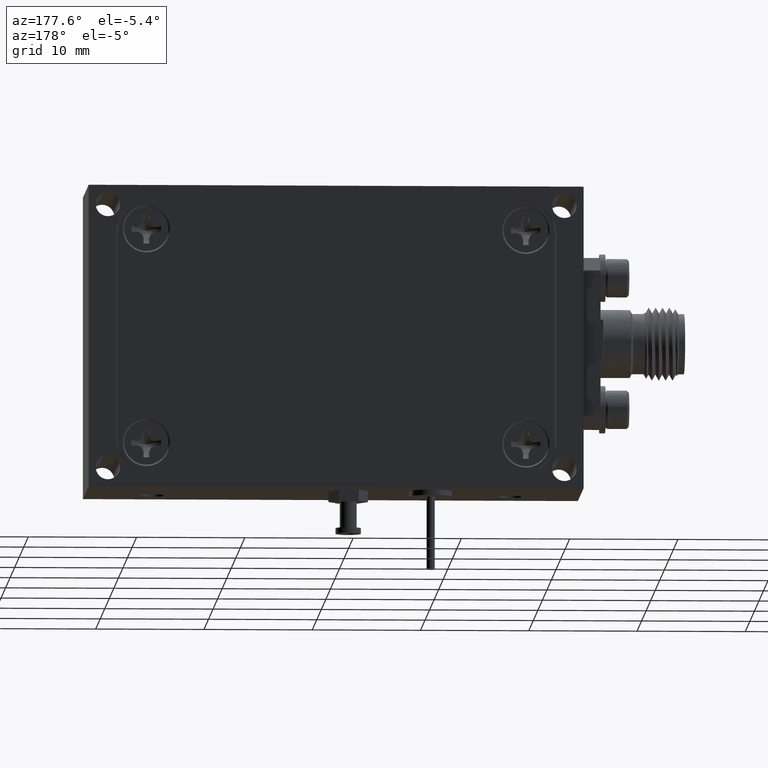
[diagram: clean part render]
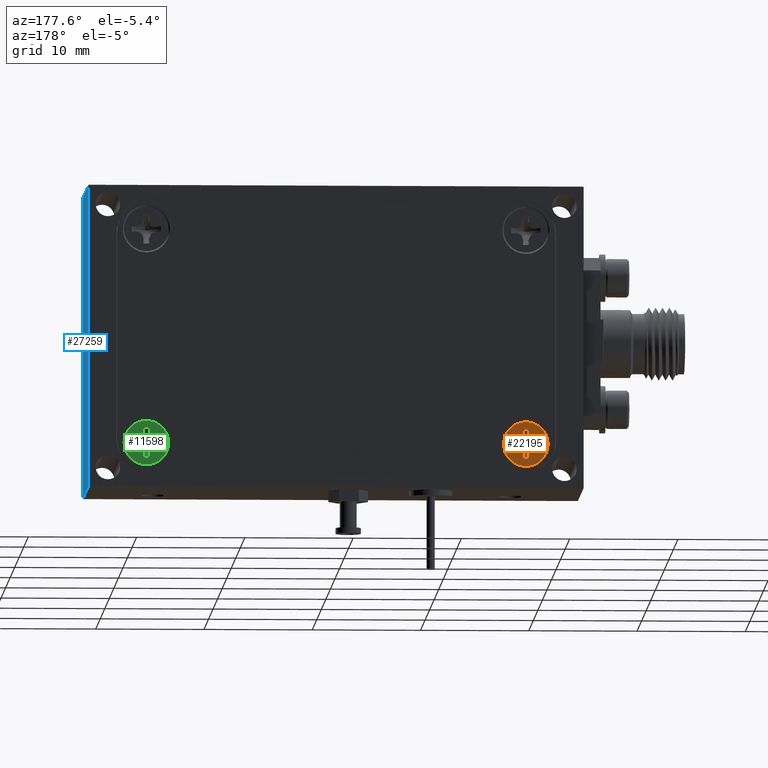
[diagram: same view with three faces highlighted in distinct colors, each labeled with its STEP entity id]
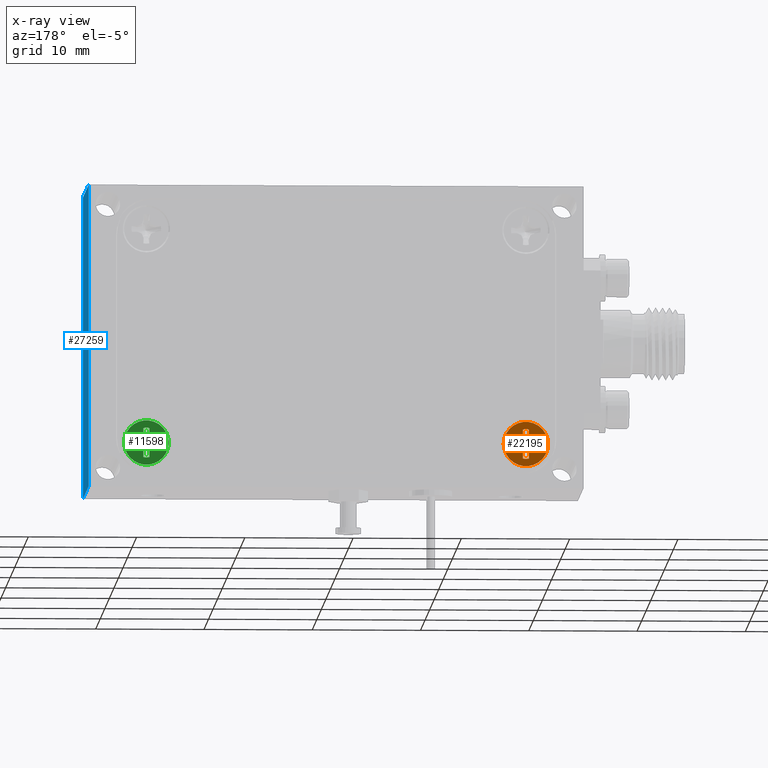
[diagram: x-ray of the same camera — body ghosted, the three highlighted faces saturated]
A machine part, auxiliary view with three faces highlighted in distinct colors.
The next image is the same camera in x-ray (body ghosted, the three faces saturated) — at least one of them is partly hidden behind the body in this view.
Their STEP definitions:

[orange] entity #22195 — the highlighted planar face has unit normal (-0, -1, 0).
#238 = EDGE_CURVE ( 'NONE', #13866, #3992, #24157, .T. ) ;
#598 = EDGE_CURVE ( 'NONE', #15924, #14103, #23766, .T. ) ;
#1007 = CARTESIAN_POINT ( 'NONE',  ( -0.7069667171187216100, 0.4995000000000008900, -0.3730332828812789600 ) ) ;
#1145 = ORIENTED_EDGE ( 'NONE', *, *, #6030, .F. ) ;
#1185 = VECTOR ( 'NONE', #7824, 39.37007874015748100 ) ;
#1436 = VECTOR ( 'NONE', #10237, 39.37007874015748100 ) ;
#1502 = VECTOR ( 'NONE', #2216, 39.37007874015748100 ) ;
#1507 = DIRECTION ( 'NONE',  ( 1.000000000000000000, 0.0000000000000000000, -1.264744441511232400E-015 ) ) ;
#1617 = CARTESIAN_POINT ( 'NONE',  ( -0.6900000000000000600, 0.4994999999999998300, -0.3900000000000002900 ) ) ;
#1690 = CARTESIAN_POINT ( 'NONE',  ( -0.7007999999999997600, 0.4995000000000008900, -0.3581455107779414300 ) ) ;
#1707 = DIRECTION ( 'NONE',  ( 0.9238795325112825200, 2.901436966726516100E-017, -0.3826834323651000000 ) ) ;
#1766 = VERTEX_POINT ( 'NONE', #26920 ) ;
#2216 = DIRECTION ( 'NONE',  ( -8.382183835919917700E-015, -2.199460312569104900E-017, -1.000000000000000000 ) ) ;
#2220 = DIRECTION ( 'NONE',  ( -4.051539033792351500E-017, -1.000000000000000000, -2.199460312569029700E-017 ) ) ;
#2538 = DIRECTION ( 'NONE',  ( -0.9238795325112870700, -4.584831010256090100E-017, -0.3826834323650889500 ) ) ;
#2598 = VECTOR ( 'NONE', #22545, 39.37007874015748100 ) ;
#2823 = DIRECTION ( 'NONE',  ( 1.000000000000000000, 0.0000000000000000000, -1.264744441511232400E-015 ) ) ;
#2915 = CARTESIAN_POINT ( 'NONE',  ( -0.6900000000000000600, 0.4994999999999998300, -0.3900000000000002900 ) ) ;
#3199 = CARTESIAN_POINT ( 'NONE',  ( -0.6581455107779423700, 0.4995000000000001100, -0.3792000000000003100 ) ) ;
#3255 = EDGE_CURVE ( 'NONE', #27132, #23635, #16829, .T. ) ;
#3298 = VECTOR ( 'NONE', #20271, 39.37007874015748100 ) ;
#3348 = CARTESIAN_POINT ( 'NONE',  ( -0.6581455107779423700, 0.4995000000000001100, -0.3792000000000003100 ) ) ;
#3638 = EDGE_CURVE ( 'NONE', #9583, #11271, #25441, .T. ) ;
#3767 = VECTOR ( 'NONE', #19822, 39.37007874015748900 ) ;
#3823 = DIRECTION ( 'NONE',  ( 9.992007221626401000E-016, -2.199460312569048200E-017, -1.000000000000000000 ) ) ;
#3835 = ORIENTED_EDGE ( 'NONE', *, *, #21516, .F. ) ;
#3956 = LINE ( 'NONE', #7256, #12487 ) ;
#3968 = DIRECTION ( 'NONE',  ( 2.386979502944084600E-015, 2.199460312569126800E-017, 1.000000000000000000 ) ) ;
#3992 = VERTEX_POINT ( 'NONE', #1690 ) ;
#4122 = DIRECTION ( 'NONE',  ( 0.9238795325112896300, 4.584831010256079600E-017, 0.3826834323650825700 ) ) ;
#4187 = ORIENTED_EDGE ( 'NONE', *, *, #6208, .F. ) ;
#4433 = DIRECTION ( 'NONE',  ( -1.000000000000000000, 0.0000000000000000000, 1.686325922014976400E-015 ) ) ;
#4451 = DIRECTION ( 'NONE',  ( -2.529488883022464800E-015, 0.0000000000000000000, -1.000000000000000000 ) ) ;
#4460 = ORIENTED_EDGE ( 'NONE', *, *, #13441, .F. ) ;
#4679 = ORIENTED_EDGE ( 'NONE', *, *, #15596, .F. ) ;
#4689 = VERTEX_POINT ( 'NONE', #22533 ) ;
#5230 = DIRECTION ( 'NONE',  ( -1.000000000000000000, 0.0000000000000000000, 8.853211090578625500E-015 ) ) ;
#5324 = CARTESIAN_POINT ( 'NONE',  ( -0.6791999999999996900, 0.4994999999999998300, -0.3581455107779418800 ) ) ;
#5347 = LINE ( 'NONE', #5324, #12465 ) ;
#5361 = CARTESIAN_POINT ( 'NONE',  ( -0.6900000000000000600, 0.4994999999999998300, -0.3900000000000002900 ) ) ;
#5818 = CARTESIAN_POINT ( 'NONE',  ( -0.7429089784441177400, 0.4995000000000020000, -0.3792000000000000400 ) ) ;
#5839 = CARTESIAN_POINT ( 'NONE',  ( -0.6730332828812783900, 0.4995000000000001100, -0.3730332828812788500 ) ) ;
#6009 = VECTOR ( 'NONE', #15640, 39.37007874015748100 ) ;
#6030 = EDGE_CURVE ( 'NONE', #14103, #10661, #3956, .T. ) ;
#6069 = CARTESIAN_POINT ( 'NONE',  ( -0.7218544892220587500, 0.4995000000000008900, -0.4008000000000002100 ) ) ;
#6208 = EDGE_CURVE ( 'NONE', #3992, #27983, #19581, .T. ) ;
#6682 = LINE ( 'NONE', #5839, #25946 ) ;
#6734 = AXIS2_PLACEMENT_3D ( 'NONE', #5361, #9832, #10022 ) ;
#7050 = EDGE_LOOP ( 'NONE', ( #21828, #16923 ) ) ;
#7113 = CARTESIAN_POINT ( 'NONE',  ( -0.6792000000000002500, 0.4995000000000008900, -0.3370910215558829400 ) ) ;
#7256 = CARTESIAN_POINT ( 'NONE',  ( -0.7429089784441177400, 0.4995000000000020000, -0.3792000000000000400 ) ) ;
#7351 = PLANE ( 'NONE',  #15843 ) ;
#7824 = DIRECTION ( 'NONE',  ( 1.000000000000000000, 4.051539033792239300E-017, -1.215694211964545500E-014 ) ) ;
#7863 = CARTESIAN_POINT ( 'NONE',  ( -0.6370910215558839300, 0.4995000000000001100, -0.3792000000000006500 ) ) ;
#7866 = EDGE_CURVE ( 'NONE', #4689, #9573, #20213, .T. ) ;
#7910 = VECTOR ( 'NONE', #4122, 39.37007874015748900 ) ;
#8198 = ORIENTED_EDGE ( 'NONE', *, *, #10715, .F. ) ;
#8561 = VERTEX_POINT ( 'NONE', #18640 ) ;
#8621 = VECTOR ( 'NONE', #2538, 39.37007874015748900 ) ;
#9299 = CIRCLE ( 'NONE', #9772, 0.05400000000000002700 ) ;
#9491 = VERTEX_POINT ( 'NONE', #22335 ) ;
#9542 = VECTOR ( 'NONE', #3823, 39.37007874015748100 ) ;
#9573 = VERTEX_POINT ( 'NONE', #23825 ) ;
#9583 = VERTEX_POINT ( 'NONE', #14456 ) ;
#9772 = AXIS2_PLACEMENT_3D ( 'NONE', #1617, #15155, #1507 ) ;
#9832 = DIRECTION ( 'NONE',  ( 4.051539033792351500E-017, 1.000000000000000000, 2.199460312569029700E-017 ) ) ;
#9834 = VERTEX_POINT ( 'NONE', #27284 ) ;
#10022 = DIRECTION ( 'NONE',  ( 1.000000000000000000, 0.0000000000000000000, -1.264744441511232400E-015 ) ) ;
#10067 = CIRCLE ( 'NONE', #25820, 0.08100000000000004400 ) ;
#10105 = AXIS2_PLACEMENT_3D ( 'NONE', #11269, #2220, #18104 ) ;
#10237 = DIRECTION ( 'NONE',  ( 6.161737786669612500E-015, 2.199460312569107700E-017, 1.000000000000000000 ) ) ;
#10248 = CARTESIAN_POINT ( 'NONE',  ( -0.6730332828812783900, 0.4995000000000001100, -0.3730332828812788500 ) ) ;
#10661 = VERTEX_POINT ( 'NONE', #23125 ) ;
#10715 = EDGE_CURVE ( 'NONE', #8561, #20977, #26482, .T. ) ;
#11080 = EDGE_CURVE ( 'NONE', #9573, #4689, #10067, .T. ) ;
#11087 = CARTESIAN_POINT ( 'NONE',  ( -0.6581455107779423700, 0.4995000000000001100, -0.4007999999999993200 ) ) ;
#11181 = DIRECTION ( 'NONE',  ( 4.051539033792351500E-017, 1.000000000000000000, 2.199460312569029700E-017 ) ) ;
#11269 = CARTESIAN_POINT ( 'NONE',  ( -0.6900000000000000600, 0.4994999999999998300, -0.3900000000000002900 ) ) ;
#11271 = VERTEX_POINT ( 'NONE', #20804 ) ;
#11817 = DIRECTION ( 'NONE',  ( 1.000000000000000000, 4.051539033792308400E-017, -8.493206138382439600E-015 ) ) ;
#11865 = LINE ( 'NONE', #11087, #8621 ) ;
#12283 = CARTESIAN_POINT ( 'NONE',  ( -0.6900000000000000600, 0.4994999999999998300, -0.3900000000000002900 ) ) ;
#12359 = FACE_BOUND ( 'NONE', #25831, .T. ) ;
#12465 = VECTOR ( 'NONE', #14350, 39.37007874015748100 ) ;
#12487 = VECTOR ( 'NONE', #11817, 39.37007874015748100 ) ;
#13030 = EDGE_CURVE ( 'NONE', #10661, #13866, #20687, .T. ) ;
#13119 = ORIENTED_EDGE ( 'NONE', *, *, #13030, .F. ) ;
#13305 = CARTESIAN_POINT ( 'NONE',  ( -0.6360000000000000100, 0.4994999999999998300, -0.3899999999999991800 ) ) ;
#13424 = LINE ( 'NONE', #24403, #9542 ) ;
#13441 = EDGE_CURVE ( 'NONE', #14099, #9583, #29398, .T. ) ;
#13866 = VERTEX_POINT ( 'NONE', #1007 ) ;
#14070 = CARTESIAN_POINT ( 'NONE',  ( -0.6900000000000000600, 0.4994999999999998300, -0.3900000000000002900 ) ) ;
#14099 = VERTEX_POINT ( 'NONE', #17281 ) ;
#14103 = VERTEX_POINT ( 'NONE', #5818 ) ;
#14243 = LINE ( 'NONE', #15271, #29181 ) ;
#14277 = CARTESIAN_POINT ( 'NONE',  ( -0.6791999999999996900, 0.4994999999999998300, -0.3581455107779418800 ) ) ;
#14342 = LINE ( 'NONE', #26990, #3298 ) ;
#14350 = DIRECTION ( 'NONE',  ( 0.3826834323650816200, -4.815795015406163400E-018, -0.9238795325112901800 ) ) ;
#14364 = DIRECTION ( 'NONE',  ( -0.9238795325112850700, -2.901436966726467400E-017, 0.3826834323650937800 ) ) ;
#14456 = CARTESIAN_POINT ( 'NONE',  ( -0.7069667171187210600, 0.4994999999999998300, -0.4069667171187216800 ) ) ;
#14911 = VERTEX_POINT ( 'NONE', #13305 ) ;
#15155 = DIRECTION ( 'NONE',  ( 4.051539033792351500E-017, 1.000000000000000000, 2.199460312569029700E-017 ) ) ;
#15200 = CARTESIAN_POINT ( 'NONE',  ( -0.7429089784441166300, 0.4995000000000008900, -0.4007999999999998800 ) ) ;
#15249 = CARTESIAN_POINT ( 'NONE',  ( -0.7008000000000003100, 0.4995000000000001100, -0.4218544892220579300 ) ) ;
#15271 = CARTESIAN_POINT ( 'NONE',  ( -0.7008000000000003100, 0.4994999999999978900, -0.4429089784441161400 ) ) ;
#15492 = VERTEX_POINT ( 'NONE', #20072 ) ;
#15596 = EDGE_CURVE ( 'NONE', #1766, #15492, #14342, .T. ) ;
#15640 = DIRECTION ( 'NONE',  ( 0.3826834323650954400, 3.582493229166270500E-017, 0.9238795325112844100 ) ) ;
#15721 = CARTESIAN_POINT ( 'NONE',  ( -0.7008000000000003100, 0.4994999999999978900, -0.4429089784441161400 ) ) ;
#15843 = AXIS2_PLACEMENT_3D ( 'NONE', #16048, #23156, #25363 ) ;
#15924 = VERTEX_POINT ( 'NONE', #15200 ) ;
#15959 = ORIENTED_EDGE ( 'NONE', *, *, #16997, .F. ) ;
#16048 = CARTESIAN_POINT ( 'NONE',  ( -0.6900000000000000600, 0.4994999999999990000, -0.4329999999999998800 ) ) ;
#16268 = ORIENTED_EDGE ( 'NONE', *, *, #22212, .F. ) ;
#16317 = CARTESIAN_POINT ( 'NONE',  ( -0.7069667171187210600, 0.4994999999999998300, -0.4069667171187216800 ) ) ;
#16474 = ORIENTED_EDGE ( 'NONE', *, *, #18306, .F. ) ;
#16621 = CIRCLE ( 'NONE', #28473, 0.05400000000000002700 ) ;
#16829 = LINE ( 'NONE', #3348, #1185 ) ;
#16923 = ORIENTED_EDGE ( 'NONE', *, *, #11080, .F. ) ;
#16997 = EDGE_CURVE ( 'NONE', #18202, #9491, #19584, .T. ) ;
#17281 = CARTESIAN_POINT ( 'NONE',  ( -0.7008000000000003100, 0.4995000000000001100, -0.4218544892220579300 ) ) ;
#17716 = ORIENTED_EDGE ( 'NONE', *, *, #26054, .F. ) ;
#18104 = DIRECTION ( 'NONE',  ( -1.000000000000000000, 0.0000000000000000000, 1.686325922014976400E-015 ) ) ;
#18202 = VERTEX_POINT ( 'NONE', #18365 ) ;
#18306 = EDGE_CURVE ( 'NONE', #26735, #20076, #5347, .T. ) ;
#18365 = CARTESIAN_POINT ( 'NONE',  ( -0.6730332828812789500, 0.4995000000000001100, -0.4069667171187215700 ) ) ;
#18640 = CARTESIAN_POINT ( 'NONE',  ( -0.6792000000000002500, 0.4994999999999978900, -0.4429089784441172000 ) ) ;
#18826 = ORIENTED_EDGE ( 'NONE', *, *, #26570, .F. ) ;
#19581 = LINE ( 'NONE', #23863, #1436 ) ;
#19584 = LINE ( 'NONE', #27871, #23164 ) ;
#19671 = EDGE_CURVE ( 'NONE', #20076, #27132, #6682, .T. ) ;
#19706 = ORIENTED_EDGE ( 'NONE', *, *, #19889, .F. ) ;
#19822 = DIRECTION ( 'NONE',  ( -0.3826834323650879500, 4.815795015407097900E-018, 0.9238795325112874000 ) ) ;
#19889 = EDGE_CURVE ( 'NONE', #27983, #9834, #16621, .T. ) ;
#20030 = ORIENTED_EDGE ( 'NONE', *, *, #29354, .F. ) ;
#20048 = ORIENTED_EDGE ( 'NONE', *, *, #28115, .F. ) ;
#20072 = CARTESIAN_POINT ( 'NONE',  ( -0.6581455107779423700, 0.4995000000000001100, -0.4007999999999993200 ) ) ;
#20076 = VERTEX_POINT ( 'NONE', #10248 ) ;
#20213 = CIRCLE ( 'NONE', #10105, 0.08100000000000004400 ) ;
#20271 = DIRECTION ( 'NONE',  ( -1.000000000000000000, -4.051539033792298500E-017, 1.665334536937733800E-015 ) ) ;
#20687 = LINE ( 'NONE', #22388, #7910 ) ;
#20804 = CARTESIAN_POINT ( 'NONE',  ( -0.7218544892220587500, 0.4995000000000008900, -0.4008000000000002100 ) ) ;
#20977 = VERTEX_POINT ( 'NONE', #15721 ) ;
#21242 = ORIENTED_EDGE ( 'NONE', *, *, #26178, .F. ) ;
#21516 = EDGE_CURVE ( 'NONE', #9491, #8561, #13424, .T. ) ;
#21646 = ORIENTED_EDGE ( 'NONE', *, *, #3638, .F. ) ;
#21828 = ORIENTED_EDGE ( 'NONE', *, *, #7866, .F. ) ;
#21911 = CARTESIAN_POINT ( 'NONE',  ( -0.7007999999999997600, 0.4995000000000008900, -0.3370910215558832700 ) ) ;
#22189 = VECTOR ( 'NONE', #14364, 39.37007874015748100 ) ;
#22195 = ADVANCED_FACE ( 'NONE', ( #12359, #23752 ), #7351, .F. ) ;
#22212 = EDGE_CURVE ( 'NONE', #23635, #14911, #27684, .T. ) ;
#22335 = CARTESIAN_POINT ( 'NONE',  ( -0.6792000000000002500, 0.4995000000000001100, -0.4218544892220584300 ) ) ;
#22388 = CARTESIAN_POINT ( 'NONE',  ( -0.7218544892220587500, 0.4995000000000008900, -0.3792000000000003700 ) ) ;
#22420 = CARTESIAN_POINT ( 'NONE',  ( -0.6900000000000000600, 0.4994999999999998300, -0.3900000000000002900 ) ) ;
#22526 = LINE ( 'NONE', #6069, #2598 ) ;
#22533 = CARTESIAN_POINT ( 'NONE',  ( -0.6089999999999999900, 0.4994999999999998300, -0.3900000000000004000 ) ) ;
#22545 = DIRECTION ( 'NONE',  ( -1.000000000000000000, -4.051539033792298500E-017, 5.218048215738231000E-015 ) ) ;
#22721 = AXIS2_PLACEMENT_3D ( 'NONE', #14070, #27528, #2823 ) ;
#22742 = ORIENTED_EDGE ( 'NONE', *, *, #598, .F. ) ;
#23125 = CARTESIAN_POINT ( 'NONE',  ( -0.7218544892220587500, 0.4995000000000008900, -0.3792000000000003700 ) ) ;
#23156 = DIRECTION ( 'NONE',  ( -4.051539033792365700E-017, -1.000000000000000000, 2.068676618251973500E-017 ) ) ;
#23164 = VECTOR ( 'NONE', #25972, 39.37007874015748900 ) ;
#23177 = CARTESIAN_POINT ( 'NONE',  ( -0.7069667171187216100, 0.4995000000000008900, -0.3730332828812789600 ) ) ;
#23411 = AXIS2_PLACEMENT_3D ( 'NONE', #12283, #11181, #4451 ) ;
#23635 = VERTEX_POINT ( 'NONE', #7863 ) ;
#23752 = FACE_OUTER_BOUND ( 'NONE', #7050, .T. ) ;
#23766 = CIRCLE ( 'NONE', #23411, 0.05400000000000002700 ) ;
#23825 = CARTESIAN_POINT ( 'NONE',  ( -0.7710000000000000200, 0.4994999999999998300, -0.3900000000000001200 ) ) ;
#23863 = CARTESIAN_POINT ( 'NONE',  ( -0.7007999999999997600, 0.4995000000000008900, -0.3581455107779414300 ) ) ;
#24157 = LINE ( 'NONE', #23177, #6009 ) ;
#24311 = LINE ( 'NONE', #7113, #1502 ) ;
#24403 = CARTESIAN_POINT ( 'NONE',  ( -0.6792000000000002500, 0.4995000000000001100, -0.4218544892220584300 ) ) ;
#24732 = DIRECTION ( 'NONE',  ( -4.051539033792351500E-017, -1.000000000000000000, -2.199460312569029700E-017 ) ) ;
#24767 = ORIENTED_EDGE ( 'NONE', *, *, #19671, .F. ) ;
#25363 = DIRECTION ( 'NONE',  ( 9.992007221626401000E-016, -2.068676618251977500E-017, -1.000000000000000000 ) ) ;
#25441 = LINE ( 'NONE', #16317, #22189 ) ;
#25496 = ORIENTED_EDGE ( 'NONE', *, *, #3255, .F. ) ;
#25736 = DIRECTION ( 'NONE',  ( 4.051539033792351500E-017, 1.000000000000000000, 2.199460312569029700E-017 ) ) ;
#25820 = AXIS2_PLACEMENT_3D ( 'NONE', #22420, #24732, #4433 ) ;
#25831 = EDGE_LOOP ( 'NONE', ( #20030, #8198, #3835, #15959, #21242, #4679, #20048, #16268, #25496, #24767, #16474, #18826, #19706, #4187, #28650, #13119, #1145, #22742, #17716, #21646, #4460 ) ) ;
#25946 = VECTOR ( 'NONE', #1707, 39.37007874015748100 ) ;
#25972 = DIRECTION ( 'NONE',  ( -0.3826834323650891200, -3.582493229166173800E-017, -0.9238795325112868500 ) ) ;
#26054 = EDGE_CURVE ( 'NONE', #11271, #15924, #22526, .T. ) ;
#26178 = EDGE_CURVE ( 'NONE', #15492, #18202, #11865, .T. ) ;
#26482 = CIRCLE ( 'NONE', #22721, 0.05400000000000002700 ) ;
#26570 = EDGE_CURVE ( 'NONE', #9834, #26735, #24311, .T. ) ;
#26735 = VERTEX_POINT ( 'NONE', #14277 ) ;
#26920 = CARTESIAN_POINT ( 'NONE',  ( -0.6370910215558833700, 0.4995000000000001100, -0.4008000000000006000 ) ) ;
#26990 = CARTESIAN_POINT ( 'NONE',  ( -0.6370910215558833700, 0.4995000000000001100, -0.4008000000000006000 ) ) ;
#27132 = VERTEX_POINT ( 'NONE', #3199 ) ;
#27284 = CARTESIAN_POINT ( 'NONE',  ( -0.6792000000000002500, 0.4995000000000008900, -0.3370910215558829400 ) ) ;
#27528 = DIRECTION ( 'NONE',  ( 4.051539033792351500E-017, 1.000000000000000000, 2.199460312569029700E-017 ) ) ;
#27684 = CIRCLE ( 'NONE', #6734, 0.05400000000000002700 ) ;
#27871 = CARTESIAN_POINT ( 'NONE',  ( -0.6730332828812789500, 0.4995000000000001100, -0.4069667171187215700 ) ) ;
#27983 = VERTEX_POINT ( 'NONE', #21911 ) ;
#28115 = EDGE_CURVE ( 'NONE', #14911, #1766, #9299, .T. ) ;
#28473 = AXIS2_PLACEMENT_3D ( 'NONE', #2915, #25736, #5230 ) ;
#28650 = ORIENTED_EDGE ( 'NONE', *, *, #238, .F. ) ;
#29181 = VECTOR ( 'NONE', #3968, 39.37007874015748100 ) ;
#29354 = EDGE_CURVE ( 'NONE', #20977, #14099, #14243, .T. ) ;
#29398 = LINE ( 'NONE', #15249, #3767 ) ;

[blue] entity #27259 — the highlighted planar face has unit normal (-1, 0, 0).
#338 = VERTEX_POINT ( 'NONE', #4029 ) ;
#1424 = LINE ( 'NONE', #15663, #12134 ) ;
#2069 = DIRECTION ( 'NONE',  ( -0.0000000000000000000, -1.000000000000000000, -0.0000000000000000000 ) ) ;
#2603 = ORIENTED_EDGE ( 'NONE', *, *, #2715, .T. ) ;
#2715 = EDGE_CURVE ( 'NONE', #25530, #8345, #1424, .T. ) ;
#2898 = VECTOR ( 'NONE', #4705, 39.37007874015748100 ) ;
#2968 = LINE ( 'NONE', #24699, #26479 ) ;
#4029 = CARTESIAN_POINT ( 'NONE',  ( 0.8999999999999998000, 0.0000000000000000000, -0.5500000000000002700 ) ) ;
#4095 = EDGE_CURVE ( 'NONE', #25530, #25848, #2968, .T. ) ;
#4334 = LINE ( 'NONE', #22897, #2898 ) ;
#4488 = CARTESIAN_POINT ( 'NONE',  ( 0.8999999999999998000, 0.5000000000000000000, 0.5499999999999998200 ) ) ;
#4705 = DIRECTION ( 'NONE',  ( -0.0000000000000000000, -1.000000000000000000, -0.0000000000000000000 ) ) ;
#5008 = CARTESIAN_POINT ( 'NONE',  ( 0.8999999999999998000, 0.0000000000000000000, 0.5499999999999998200 ) ) ;
#5627 = CARTESIAN_POINT ( 'NONE',  ( 0.8999999999999998000, 0.5000000000000000000, 0.5499999999999998200 ) ) ;
#7295 = DIRECTION ( 'NONE',  ( 0.0000000000000000000, 0.0000000000000000000, -1.000000000000000000 ) ) ;
#8345 = VERTEX_POINT ( 'NONE', #27290 ) ;
#9117 = ORIENTED_EDGE ( 'NONE', *, *, #16345, .F. ) ;
#11693 = ORIENTED_EDGE ( 'NONE', *, *, #27095, .T. ) ;
#12134 = VECTOR ( 'NONE', #2069, 39.37007874015748100 ) ;
#14030 = CARTESIAN_POINT ( 'NONE',  ( 0.8999999999999998000, 0.5000000000000000000, -0.5500000000000002700 ) ) ;
#15595 = AXIS2_PLACEMENT_3D ( 'NONE', #4488, #15674, #29271 ) ;
#15663 = CARTESIAN_POINT ( 'NONE',  ( 0.8999999999999998000, 0.5000000000000000000, 0.5499999999999998200 ) ) ;
#15674 = DIRECTION ( 'NONE',  ( -1.000000000000000000, 0.0000000000000000000, 0.0000000000000000000 ) ) ;
#16345 = EDGE_CURVE ( 'NONE', #25848, #338, #4334, .T. ) ;
#19964 = LINE ( 'NONE', #5008, #20669 ) ;
#20669 = VECTOR ( 'NONE', #7295, 39.37007874015748100 ) ;
#21056 = FACE_OUTER_BOUND ( 'NONE', #21386, .T. ) ;
#21386 = EDGE_LOOP ( 'NONE', ( #11693, #9117, #21965, #2603 ) ) ;
#21965 = ORIENTED_EDGE ( 'NONE', *, *, #4095, .F. ) ;
#22897 = CARTESIAN_POINT ( 'NONE',  ( 0.8999999999999998000, 0.5000000000000000000, -0.5500000000000002700 ) ) ;
#24699 = CARTESIAN_POINT ( 'NONE',  ( 0.8999999999999998000, 0.5000000000000000000, 0.5499999999999998200 ) ) ;
#25530 = VERTEX_POINT ( 'NONE', #5627 ) ;
#25848 = VERTEX_POINT ( 'NONE', #14030 ) ;
#26479 = VECTOR ( 'NONE', #26895, 39.37007874015748100 ) ;
#26895 = DIRECTION ( 'NONE',  ( 0.0000000000000000000, 0.0000000000000000000, -1.000000000000000000 ) ) ;
#26986 = PLANE ( 'NONE',  #15595 ) ;
#27095 = EDGE_CURVE ( 'NONE', #8345, #338, #19964, .T. ) ;
#27259 = ADVANCED_FACE ( 'NONE', ( #21056 ), #26986, .F. ) ;
#27290 = CARTESIAN_POINT ( 'NONE',  ( 0.8999999999999998000, 0.0000000000000000000, 0.5499999999999998200 ) ) ;
#29271 = DIRECTION ( 'NONE',  ( 0.0000000000000000000, 0.0000000000000000000, 1.000000000000000000 ) ) ;

[green] entity #11598 — the highlighted planar face has unit normal (-0, -1, 0).
#109 = VERTEX_POINT ( 'NONE', #22351 ) ;
#327 = CARTESIAN_POINT ( 'NONE',  ( 0.7007999999999997600, 0.4995000000000001100, -0.4218544892220584800 ) ) ;
#505 = DIRECTION ( 'NONE',  ( 0.3826834323650816200, -4.815795015406163400E-018, -0.9238795325112901800 ) ) ;
#569 = CARTESIAN_POINT ( 'NONE',  ( 0.7069667171187210600, 0.4995000000000001100, -0.4069667171187216200 ) ) ;
#613 = VECTOR ( 'NONE', #28041, 39.37007874015748100 ) ;
#665 = CARTESIAN_POINT ( 'NONE',  ( 0.6730332828812783900, 0.4995000000000008900, -0.3730332828812790200 ) ) ;
#715 = AXIS2_PLACEMENT_3D ( 'NONE', #26293, #28579, #14731 ) ;
#877 = EDGE_CURVE ( 'NONE', #19113, #12222, #25594, .T. ) ;
#1303 = CARTESIAN_POINT ( 'NONE',  ( 0.7429089784441166300, 0.4995000000000001100, -0.4008000000000006600 ) ) ;
#1318 = VECTOR ( 'NONE', #26128, 39.37007874015748100 ) ;
#1472 = LINE ( 'NONE', #16491, #18162 ) ;
#1613 = CARTESIAN_POINT ( 'NONE',  ( 0.6900000000000000600, 0.4994999999999998300, -0.3900000000000003500 ) ) ;
#1783 = CIRCLE ( 'NONE', #24962, 0.05400000000000002700 ) ;
#1915 = VERTEX_POINT ( 'NONE', #4821 ) ;
#2097 = DIRECTION ( 'NONE',  ( -0.3826834323650891200, -3.582493229166173800E-017, -0.9238795325112868500 ) ) ;
#2376 = CARTESIAN_POINT ( 'NONE',  ( 0.6370910215558833700, 0.4995000000000008900, -0.4007999999999999300 ) ) ;
#2648 = LINE ( 'NONE', #10187, #22575 ) ;
#2654 = EDGE_CURVE ( 'NONE', #11717, #10712, #12480, .T. ) ;
#2690 = EDGE_CURVE ( 'NONE', #109, #22134, #3229, .T. ) ;
#2830 = VECTOR ( 'NONE', #2097, 39.37007874015748900 ) ;
#2868 = CARTESIAN_POINT ( 'NONE',  ( 0.6900000000000000600, 0.4994999999999998300, -0.3900000000000003500 ) ) ;
#2976 = VECTOR ( 'NONE', #14863, 39.37007874015748100 ) ;
#3229 = CIRCLE ( 'NONE', #7812, 0.05400000000000002700 ) ;
#3647 = CIRCLE ( 'NONE', #9976, 0.05400000000000002700 ) ;
#3873 = ORIENTED_EDGE ( 'NONE', *, *, #3934, .F. ) ;
#3934 = EDGE_CURVE ( 'NONE', #9703, #23188, #10090, .T. ) ;
#4120 = DIRECTION ( 'NONE',  ( 9.992007221626401000E-016, -2.068676618251977500E-017, -1.000000000000000000 ) ) ;
#4289 = VECTOR ( 'NONE', #23421, 39.37007874015748100 ) ;
#4320 = ORIENTED_EDGE ( 'NONE', *, *, #5913, .F. ) ;
#4341 = EDGE_CURVE ( 'NONE', #23188, #20480, #23967, .T. ) ;
#4401 = DIRECTION ( 'NONE',  ( 4.051539033792351500E-017, 1.000000000000000000, 2.199460312569029700E-017 ) ) ;
#4648 = CIRCLE ( 'NONE', #29547, 0.08100000000000004400 ) ;
#4718 = CARTESIAN_POINT ( 'NONE',  ( 0.6581455107779412600, 0.4995000000000008900, -0.4008000000000002700 ) ) ;
#4821 = CARTESIAN_POINT ( 'NONE',  ( 0.7439999999999999900, 0.4994999999999998300, -0.3899999999999992400 ) ) ;
#4890 = CARTESIAN_POINT ( 'NONE',  ( 0.7007999999999997600, 0.4995000000000001100, -0.4218544892220584800 ) ) ;
#5064 = ORIENTED_EDGE ( 'NONE', *, *, #28369, .F. ) ;
#5369 = DIRECTION ( 'NONE',  ( 0.3826834323650954400, 3.582493229166270500E-017, 0.9238795325112844100 ) ) ;
#5796 = FACE_OUTER_BOUND ( 'NONE', #17477, .T. ) ;
#5913 = EDGE_CURVE ( 'NONE', #12222, #6315, #25320, .T. ) ;
#6047 = CARTESIAN_POINT ( 'NONE',  ( 0.7069667171187216100, 0.4995000000000001100, -0.3730332828812789600 ) ) ;
#6155 = CARTESIAN_POINT ( 'NONE',  ( 0.6730332828812789500, 0.4994999999999998300, -0.4069667171187217900 ) ) ;
#6315 = VERTEX_POINT ( 'NONE', #6155 ) ;
#6528 = EDGE_CURVE ( 'NONE', #18676, #16307, #24928, .T. ) ;
#6544 = CARTESIAN_POINT ( 'NONE',  ( 0.7007999999999997600, 0.4995000000000008900, -0.3370910215558830000 ) ) ;
#6574 = CARTESIAN_POINT ( 'NONE',  ( 0.6900000000000000600, 0.4994999999999998300, -0.3900000000000003500 ) ) ;
#6857 = EDGE_CURVE ( 'NONE', #20480, #18676, #7831, .T. ) ;
#7271 = LINE ( 'NONE', #17284, #2976 ) ;
#7725 = AXIS2_PLACEMENT_3D ( 'NONE', #22685, #27078, #4120 ) ;
#7812 = AXIS2_PLACEMENT_3D ( 'NONE', #8853, #19877, #22069 ) ;
#7831 = LINE ( 'NONE', #8782, #2830 ) ;
#8099 = EDGE_CURVE ( 'NONE', #11436, #13122, #22723, .T. ) ;
#8551 = DIRECTION ( 'NONE',  ( -2.529488883022464800E-015, 0.0000000000000000000, -1.000000000000000000 ) ) ;
#8578 = DIRECTION ( 'NONE',  ( -4.051539033792351500E-017, -1.000000000000000000, -2.199460312569029700E-017 ) ) ;
#8614 = FACE_BOUND ( 'NONE', #18037, .T. ) ;
#8665 = PLANE ( 'NONE',  #7725 ) ;
#8774 = VERTEX_POINT ( 'NONE', #26706 ) ;
#8782 = CARTESIAN_POINT ( 'NONE',  ( 0.7069667171187210600, 0.4995000000000001100, -0.4069667171187216200 ) ) ;
#8792 = ORIENTED_EDGE ( 'NONE', *, *, #877, .F. ) ;
#8853 = CARTESIAN_POINT ( 'NONE',  ( 0.6900000000000000600, 0.4994999999999998300, -0.3900000000000003500 ) ) ;
#9218 = VERTEX_POINT ( 'NONE', #22261 ) ;
#9268 = CARTESIAN_POINT ( 'NONE',  ( 0.7218544892220576400, 0.4995000000000001100, -0.3792000000000003700 ) ) ;
#9703 = VERTEX_POINT ( 'NONE', #1303 ) ;
#9803 = EDGE_CURVE ( 'NONE', #1915, #9703, #20069, .T. ) ;
#9839 = DIRECTION ( 'NONE',  ( 4.051539033792351500E-017, 1.000000000000000000, 2.199460312569029700E-017 ) ) ;
#9976 = AXIS2_PLACEMENT_3D ( 'NONE', #6574, #4401, #18057 ) ;
#10090 = LINE ( 'NONE', #26408, #28277 ) ;
#10097 = ORIENTED_EDGE ( 'NONE', *, *, #27027, .F. ) ;
#10187 = CARTESIAN_POINT ( 'NONE',  ( 0.7218544892220576400, 0.4995000000000001100, -0.3792000000000003700 ) ) ;
#10202 = CARTESIAN_POINT ( 'NONE',  ( 0.6791999999999996900, 0.4994999999999978900, -0.4429089784441162000 ) ) ;
#10477 = DIRECTION ( 'NONE',  ( -1.000000000000000000, -4.051539033792298500E-017, 1.665334536937733800E-015 ) ) ;
#10514 = VERTEX_POINT ( 'NONE', #12011 ) ;
#10595 = ORIENTED_EDGE ( 'NONE', *, *, #2690, .F. ) ;
#10683 = LINE ( 'NONE', #16099, #4289 ) ;
#10701 = VECTOR ( 'NONE', #22464, 39.37007874015748900 ) ;
#10712 = VERTEX_POINT ( 'NONE', #11774 ) ;
#11434 = CIRCLE ( 'NONE', #715, 0.08100000000000004400 ) ;
#11436 = VERTEX_POINT ( 'NONE', #19290 ) ;
#11509 = CARTESIAN_POINT ( 'NONE',  ( 0.7007999999999997600, 0.4994999999999978900, -0.4429089784441172500 ) ) ;
#11598 = ADVANCED_FACE ( 'NONE', ( #8614, #5796 ), #8665, .F. ) ;
#11646 = CARTESIAN_POINT ( 'NONE',  ( 0.7008000000000003100, 0.4994999999999998300, -0.3581455107779419300 ) ) ;
#11668 = EDGE_CURVE ( 'NONE', #16307, #19113, #3647, .T. ) ;
#11717 = VERTEX_POINT ( 'NONE', #2376 ) ;
#11774 = CARTESIAN_POINT ( 'NONE',  ( 0.6370910215558822600, 0.4995000000000020000, -0.3792000000000000900 ) ) ;
#11939 = CARTESIAN_POINT ( 'NONE',  ( 0.6581455107779412600, 0.4995000000000008900, -0.4008000000000002700 ) ) ;
#12011 = CARTESIAN_POINT ( 'NONE',  ( 0.6792000000000002500, 0.4995000000000008900, -0.3581455107779414900 ) ) ;
#12046 = LINE ( 'NONE', #665, #25215 ) ;
#12222 = VERTEX_POINT ( 'NONE', #12688 ) ;
#12425 = ORIENTED_EDGE ( 'NONE', *, *, #24022, .F. ) ;
#12480 = CIRCLE ( 'NONE', #19014, 0.05400000000000002700 ) ;
#12688 = CARTESIAN_POINT ( 'NONE',  ( 0.6791999999999996900, 0.4995000000000001100, -0.4218544892220580400 ) ) ;
#13106 = CARTESIAN_POINT ( 'NONE',  ( 0.6791999999999996900, 0.4994999999999978900, -0.4429089784441162000 ) ) ;
#13122 = VERTEX_POINT ( 'NONE', #9268 ) ;
#13505 = CARTESIAN_POINT ( 'NONE',  ( 0.6791999999999996900, 0.4995000000000001100, -0.4218544892220580400 ) ) ;
#13598 = VECTOR ( 'NONE', #18651, 39.37007874015748900 ) ;
#13662 = CARTESIAN_POINT ( 'NONE',  ( 0.7218544892220576400, 0.4995000000000001100, -0.4007999999999993800 ) ) ;
#14046 = EDGE_CURVE ( 'NONE', #13122, #28078, #2648, .T. ) ;
#14130 = DIRECTION ( 'NONE',  ( -1.000000000000000000, -4.051539033792298500E-017, 5.218048215738231000E-015 ) ) ;
#14731 = DIRECTION ( 'NONE',  ( -1.000000000000000000, 0.0000000000000000000, 1.686325922014976400E-015 ) ) ;
#14863 = DIRECTION ( 'NONE',  ( -0.9238795325112850700, -2.901436966726467400E-017, 0.3826834323650937800 ) ) ;
#14978 = CARTESIAN_POINT ( 'NONE',  ( 0.7429089784441160700, 0.4995000000000001100, -0.3792000000000007000 ) ) ;
#15327 = ORIENTED_EDGE ( 'NONE', *, *, #21201, .F. ) ;
#15415 = EDGE_CURVE ( 'NONE', #10514, #109, #26787, .T. ) ;
#15529 = DIRECTION ( 'NONE',  ( 6.161737786669612500E-015, 2.199460312569107700E-017, 1.000000000000000000 ) ) ;
#15758 = ORIENTED_EDGE ( 'NONE', *, *, #9803, .F. ) ;
#16099 = CARTESIAN_POINT ( 'NONE',  ( 0.6370910215558822600, 0.4995000000000020000, -0.3792000000000000900 ) ) ;
#16307 = VERTEX_POINT ( 'NONE', #11509 ) ;
#16491 = CARTESIAN_POINT ( 'NONE',  ( 0.7008000000000003100, 0.4994999999999998300, -0.3581455107779419300 ) ) ;
#16504 = ORIENTED_EDGE ( 'NONE', *, *, #8099, .F. ) ;
#16514 = CARTESIAN_POINT ( 'NONE',  ( 0.7007999999999997600, 0.4995000000000008900, -0.3370910215558830000 ) ) ;
#16603 = EDGE_CURVE ( 'NONE', #9218, #8774, #11434, .T. ) ;
#16953 = EDGE_CURVE ( 'NONE', #28078, #1915, #1783, .T. ) ;
#17186 = DIRECTION ( 'NONE',  ( 1.000000000000000000, 4.051539033792239300E-017, -1.215694211964545500E-014 ) ) ;
#17284 = CARTESIAN_POINT ( 'NONE',  ( 0.6730332828812789500, 0.4994999999999998300, -0.4069667171187217900 ) ) ;
#17428 = LINE ( 'NONE', #11939, #28907 ) ;
#17477 = EDGE_LOOP ( 'NONE', ( #18927, #18338 ) ) ;
#17559 = CARTESIAN_POINT ( 'NONE',  ( 0.6900000000000000600, 0.4994999999999998300, -0.3900000000000003500 ) ) ;
#17690 = EDGE_CURVE ( 'NONE', #8774, #9218, #4648, .T. ) ;
#17836 = ORIENTED_EDGE ( 'NONE', *, *, #14046, .F. ) ;
#18037 = EDGE_LOOP ( 'NONE', ( #8792, #28679, #25624, #20439, #19755, #3873, #15758, #22841, #17836, #16504, #10097, #15327, #10595, #25978, #21507, #12425, #5064, #18996, #27060, #26022, #4320 ) ) ;
#18057 = DIRECTION ( 'NONE',  ( 1.000000000000000000, 0.0000000000000000000, -1.264744441511232400E-015 ) ) ;
#18162 = VECTOR ( 'NONE', #505, 39.37007874015748100 ) ;
#18220 = VERTEX_POINT ( 'NONE', #20980 ) ;
#18338 = ORIENTED_EDGE ( 'NONE', *, *, #17690, .F. ) ;
#18373 = LINE ( 'NONE', #16514, #613 ) ;
#18651 = DIRECTION ( 'NONE',  ( -0.9238795325112870700, -4.584831010256090100E-017, -0.3826834323650889500 ) ) ;
#18676 = VERTEX_POINT ( 'NONE', #4890 ) ;
#18927 = ORIENTED_EDGE ( 'NONE', *, *, #16603, .F. ) ;
#18996 = ORIENTED_EDGE ( 'NONE', *, *, #2654, .F. ) ;
#19014 = AXIS2_PLACEMENT_3D ( 'NONE', #17559, #26672, #8551 ) ;
#19113 = VERTEX_POINT ( 'NONE', #13106 ) ;
#19290 = CARTESIAN_POINT ( 'NONE',  ( 0.7069667171187216100, 0.4995000000000001100, -0.3730332828812789600 ) ) ;
#19755 = ORIENTED_EDGE ( 'NONE', *, *, #4341, .F. ) ;
#19877 = DIRECTION ( 'NONE',  ( 4.051539033792351500E-017, 1.000000000000000000, 2.199460312569029700E-017 ) ) ;
#19909 = CARTESIAN_POINT ( 'NONE',  ( 0.6581455107779412600, 0.4995000000000008900, -0.3792000000000004300 ) ) ;
#20069 = CIRCLE ( 'NONE', #22493, 0.05400000000000002700 ) ;
#20102 = LINE ( 'NONE', #27215, #29402 ) ;
#20180 = DIRECTION ( 'NONE',  ( 1.000000000000000000, 0.0000000000000000000, -1.264744441511232400E-015 ) ) ;
#20277 = CARTESIAN_POINT ( 'NONE',  ( 0.6900000000000000600, 0.4994999999999998300, -0.3900000000000003500 ) ) ;
#20439 = ORIENTED_EDGE ( 'NONE', *, *, #6857, .F. ) ;
#20480 = VERTEX_POINT ( 'NONE', #569 ) ;
#20617 = EDGE_CURVE ( 'NONE', #18220, #10514, #12046, .T. ) ;
#20980 = CARTESIAN_POINT ( 'NONE',  ( 0.6730332828812783900, 0.4995000000000008900, -0.3730332828812790200 ) ) ;
#21201 = EDGE_CURVE ( 'NONE', #22134, #23532, #18373, .T. ) ;
#21507 = ORIENTED_EDGE ( 'NONE', *, *, #20617, .F. ) ;
#21994 = VECTOR ( 'NONE', #28937, 39.37007874015748100 ) ;
#22069 = DIRECTION ( 'NONE',  ( -1.000000000000000000, 0.0000000000000000000, 8.853211090578625500E-015 ) ) ;
#22134 = VERTEX_POINT ( 'NONE', #6544 ) ;
#22261 = CARTESIAN_POINT ( 'NONE',  ( 0.7710000000000000200, 0.4994999999999998300, -0.3900000000000004600 ) ) ;
#22351 = CARTESIAN_POINT ( 'NONE',  ( 0.6792000000000002500, 0.4995000000000008900, -0.3370910215558833300 ) ) ;
#22464 = DIRECTION ( 'NONE',  ( -0.3826834323650879500, 4.815795015407097900E-018, 0.9238795325112874000 ) ) ;
#22493 = AXIS2_PLACEMENT_3D ( 'NONE', #20277, #24594, #20180 ) ;
#22575 = VECTOR ( 'NONE', #17186, 39.37007874015748100 ) ;
#22685 = CARTESIAN_POINT ( 'NONE',  ( 0.6900000000000000600, 0.4994999999999990000, -0.4329999999999999400 ) ) ;
#22723 = LINE ( 'NONE', #6047, #21994 ) ;
#22841 = ORIENTED_EDGE ( 'NONE', *, *, #16953, .F. ) ;
#23188 = VERTEX_POINT ( 'NONE', #13662 ) ;
#23421 = DIRECTION ( 'NONE',  ( 1.000000000000000000, 4.051539033792308400E-017, -8.493206138382439600E-015 ) ) ;
#23467 = DIRECTION ( 'NONE',  ( 1.000000000000000000, 0.0000000000000000000, -1.264744441511232400E-015 ) ) ;
#23532 = VERTEX_POINT ( 'NONE', #11646 ) ;
#23967 = LINE ( 'NONE', #25491, #13598 ) ;
#24022 = EDGE_CURVE ( 'NONE', #28125, #18220, #20102, .T. ) ;
#24225 = VECTOR ( 'NONE', #27638, 39.37007874015748100 ) ;
#24509 = DIRECTION ( 'NONE',  ( -1.000000000000000000, 0.0000000000000000000, 1.686325922014976400E-015 ) ) ;
#24594 = DIRECTION ( 'NONE',  ( 4.051539033792351500E-017, 1.000000000000000000, 2.199460312569029700E-017 ) ) ;
#24928 = LINE ( 'NONE', #327, #24225 ) ;
#24962 = AXIS2_PLACEMENT_3D ( 'NONE', #2868, #9839, #23467 ) ;
#25215 = VECTOR ( 'NONE', #5369, 39.37007874015748100 ) ;
#25320 = LINE ( 'NONE', #13505, #10701 ) ;
#25460 = EDGE_CURVE ( 'NONE', #6315, #28315, #7271, .T. ) ;
#25491 = CARTESIAN_POINT ( 'NONE',  ( 0.7218544892220576400, 0.4995000000000001100, -0.4007999999999993800 ) ) ;
#25594 = LINE ( 'NONE', #10202, #1318 ) ;
#25624 = ORIENTED_EDGE ( 'NONE', *, *, #6528, .F. ) ;
#25978 = ORIENTED_EDGE ( 'NONE', *, *, #15415, .F. ) ;
#26022 = ORIENTED_EDGE ( 'NONE', *, *, #25460, .F. ) ;
#26128 = DIRECTION ( 'NONE',  ( 2.386979502944084600E-015, 2.199460312569126800E-017, 1.000000000000000000 ) ) ;
#26293 = CARTESIAN_POINT ( 'NONE',  ( 0.6900000000000000600, 0.4994999999999998300, -0.3900000000000003500 ) ) ;
#26408 = CARTESIAN_POINT ( 'NONE',  ( 0.7429089784441166300, 0.4995000000000001100, -0.4008000000000006600 ) ) ;
#26672 = DIRECTION ( 'NONE',  ( 4.051539033792351500E-017, 1.000000000000000000, 2.199460312569029700E-017 ) ) ;
#26706 = CARTESIAN_POINT ( 'NONE',  ( 0.6089999999999999900, 0.4994999999999998300, -0.3900000000000002400 ) ) ;
#26787 = LINE ( 'NONE', #28926, #27164 ) ;
#27027 = EDGE_CURVE ( 'NONE', #23532, #11436, #1472, .T. ) ;
#27060 = ORIENTED_EDGE ( 'NONE', *, *, #27501, .F. ) ;
#27078 = DIRECTION ( 'NONE',  ( -4.051539033792365700E-017, -1.000000000000000000, 2.068676618251973500E-017 ) ) ;
#27164 = VECTOR ( 'NONE', #15529, 39.37007874015748100 ) ;
#27215 = CARTESIAN_POINT ( 'NONE',  ( 0.6581455107779412600, 0.4995000000000008900, -0.3792000000000004300 ) ) ;
#27501 = EDGE_CURVE ( 'NONE', #28315, #11717, #17428, .T. ) ;
#27638 = DIRECTION ( 'NONE',  ( 9.992007221626401000E-016, -2.199460312569048200E-017, -1.000000000000000000 ) ) ;
#28041 = DIRECTION ( 'NONE',  ( -8.382183835919917700E-015, -2.199460312569104900E-017, -1.000000000000000000 ) ) ;
#28050 = DIRECTION ( 'NONE',  ( 0.9238795325112896300, 4.584831010256079600E-017, 0.3826834323650825700 ) ) ;
#28078 = VERTEX_POINT ( 'NONE', #14978 ) ;
#28125 = VERTEX_POINT ( 'NONE', #19909 ) ;
#28277 = VECTOR ( 'NONE', #10477, 39.37007874015748100 ) ;
#28315 = VERTEX_POINT ( 'NONE', #4718 ) ;
#28369 = EDGE_CURVE ( 'NONE', #10712, #28125, #10683, .T. ) ;
#28579 = DIRECTION ( 'NONE',  ( -4.051539033792351500E-017, -1.000000000000000000, -2.199460312569029700E-017 ) ) ;
#28679 = ORIENTED_EDGE ( 'NONE', *, *, #11668, .F. ) ;
#28907 = VECTOR ( 'NONE', #14130, 39.37007874015748100 ) ;
#28926 = CARTESIAN_POINT ( 'NONE',  ( 0.6792000000000002500, 0.4995000000000008900, -0.3581455107779414900 ) ) ;
#28937 = DIRECTION ( 'NONE',  ( 0.9238795325112825200, 2.901436966726516100E-017, -0.3826834323651000000 ) ) ;
#29402 = VECTOR ( 'NONE', #28050, 39.37007874015748900 ) ;
#29547 = AXIS2_PLACEMENT_3D ( 'NONE', #1613, #8578, #24509 ) ;